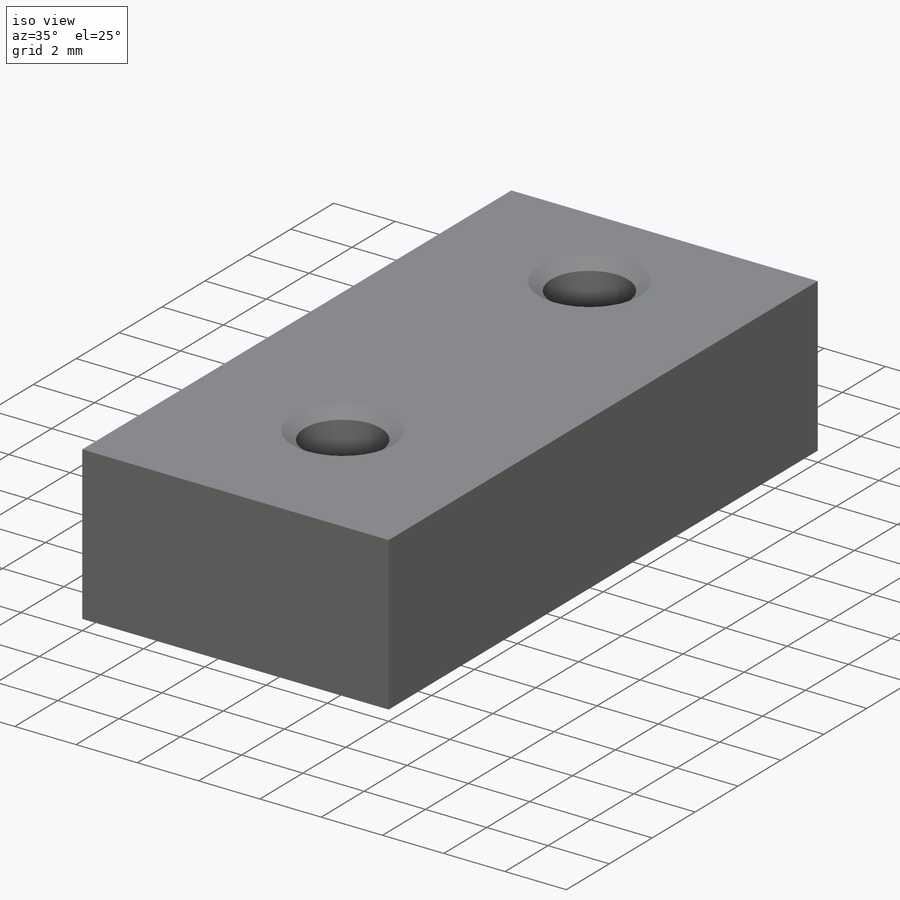
[diagram: iso view]
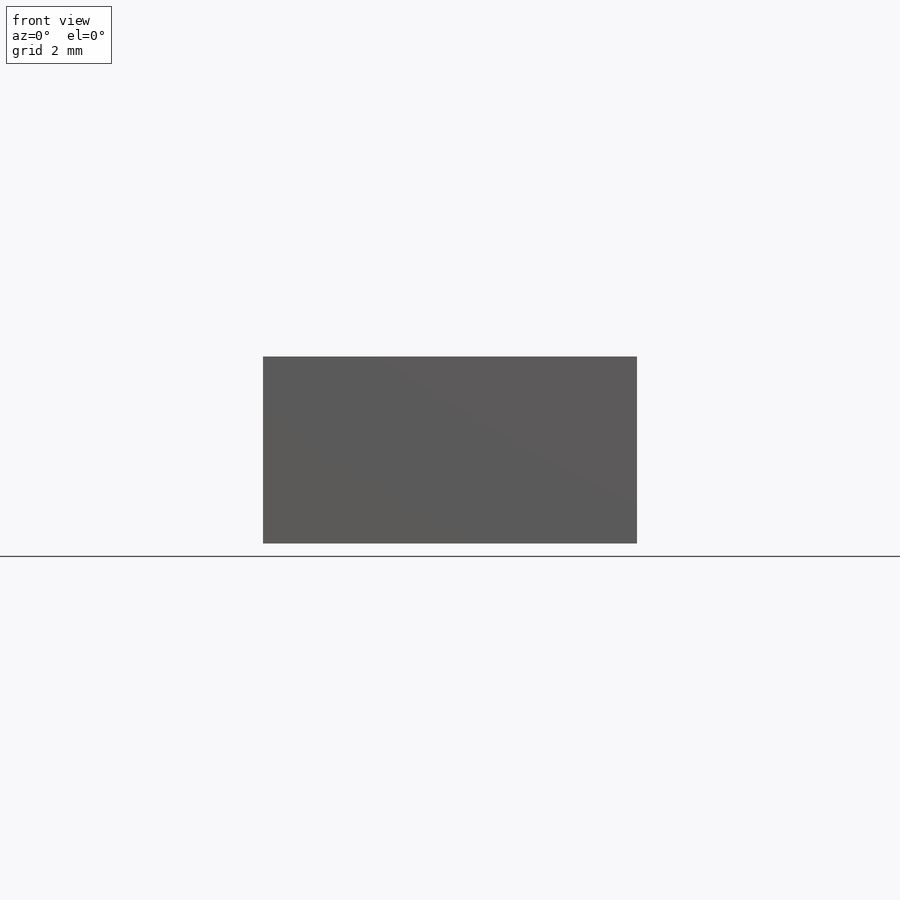
[diagram: front view]
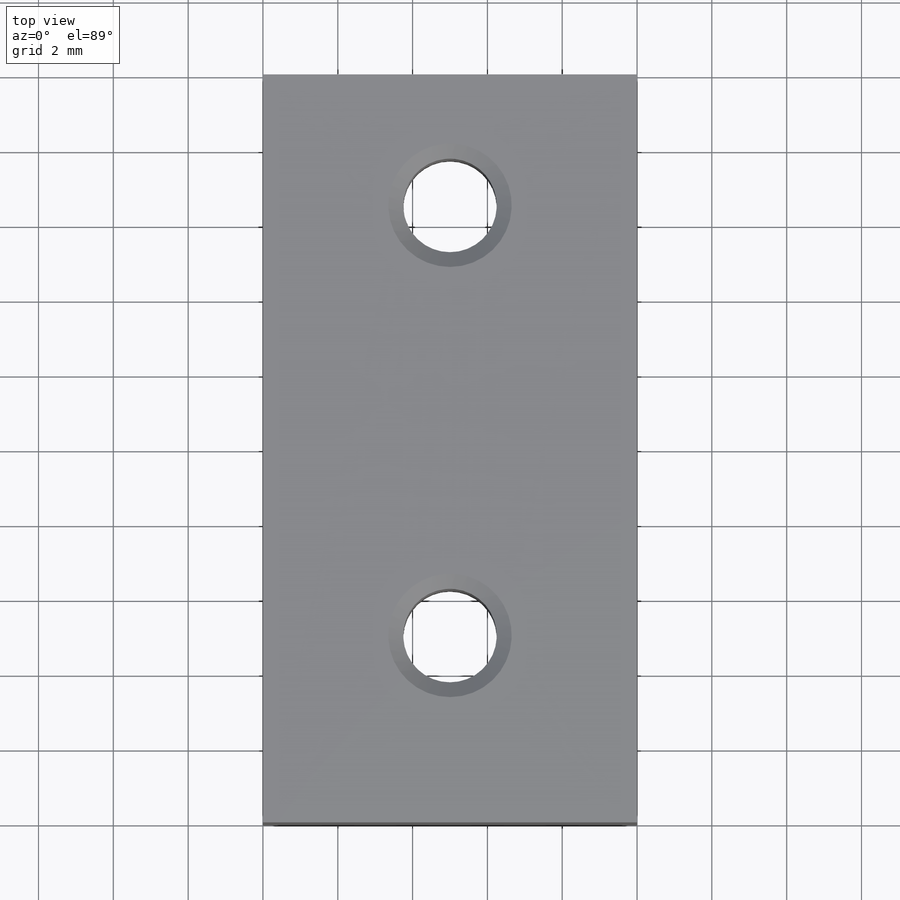
[diagram: top view]
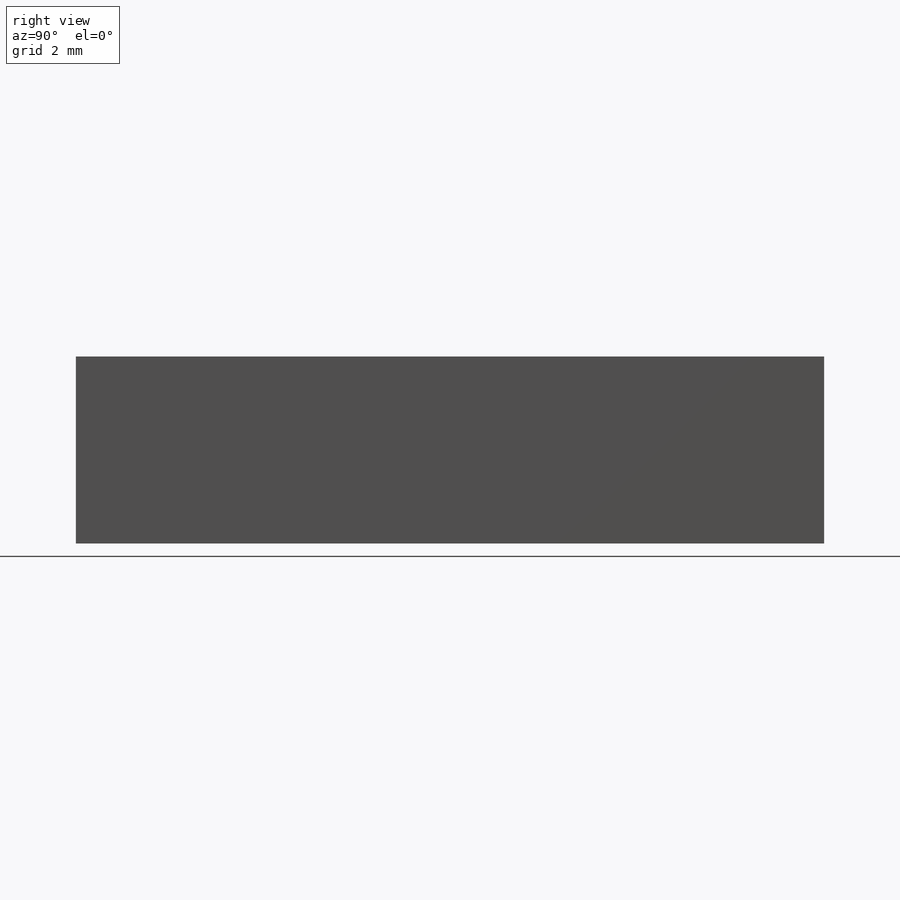
[diagram: right view]
SOLIDWORKS PART (.sldprt)
format: sldprt  version: not decoded by parser v0  size: 232,448 bytes
history: native  units: mm
features: sketch x5, thread x4, plane x3, hole x2, material x1, extrude x1 (+13 scaffold rows collapsed)
feature tree (29):
  scaffold x13  (default folders/planes/origin — collapsed)
  material  "Материал <не указан>"
  plane  "Спереди"
  plane  "Сверху"
  plane  "Справа"
  sketch  "Эскиз1"  dims[D1=5.0mm D2=10.0mm]
  extrude  "Бобышка-Вытянуть1"  Depth=20mm
  hole  "Отверстие обработанное метчиком M3x0.51"  [1 undecoded]
  sketch  "Эскиз5"  dims[D1=5.0mm D2=11.5mm D3=5.0mm]
  sketch  "Эскиз4"  dims[hole-wizard template sketch: 47 standard entries collapsed; hole parameters kept: c15.Глубина проходного сверла=5.0mm c15.Диаметр передней зенковки=3.3mm c15.D4=~3.666174mm c15.Угол передней зенковки=110.0deg c15.Диаметр задней зенковки=3.3mm c15.D6=~9.919017mm c15.Угол задней зенковки=110.0deg]
  thread  "Отверстие резьбы3"  Diameter=3mm  [1 undecoded]
  thread  "Отверстие резьбы4"  Diameter=3mm  [1 undecoded]
  hole  "Отверстие обработанное метчиком #2-561"  [1 undecoded]
  sketch  "Эскиз3"  dims[D1=2.5mm D2=8.0mm D3=8.5mm]
  thread  "Отверстие резьбы1"  Diameter=4.5mm  [1 undecoded]
  thread  "Отверстие резьбы2"  Diameter=4.121263mm  [1 undecoded]
  sketch  "Эскиз2"  dims[hole-wizard template sketch: 39 standard entries collapsed; hole parameters kept: c13.Диаметр сверла=1.778mm c13.Глубина сверла=5.5mm c13.Диаметр передней зенковки=2.54mm c13.D4=~33.297463mm c13.Угол передней зенковки=110.0deg c14.D5=~14.816244mm c14.Угол заточки сверла=118.0deg]
decode coverage: 10 of 12 modeling features carry decoded parameters
note: ~ marks probable driven/reference dimensions
note: 6 parameter values undecoded
note: suppression state not decoded; provenance and decode notes live in map.json
